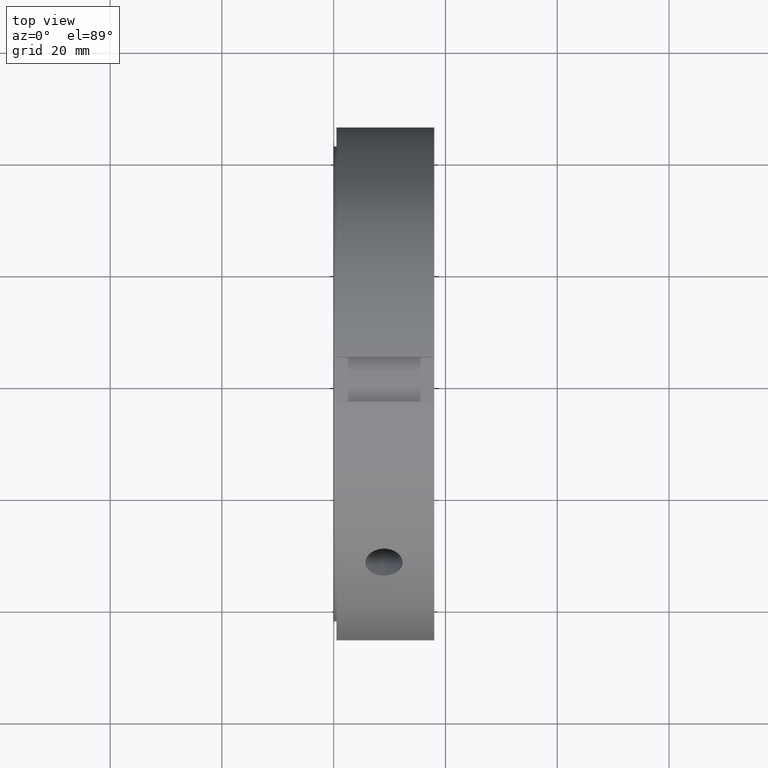
[diagram: clean part render]
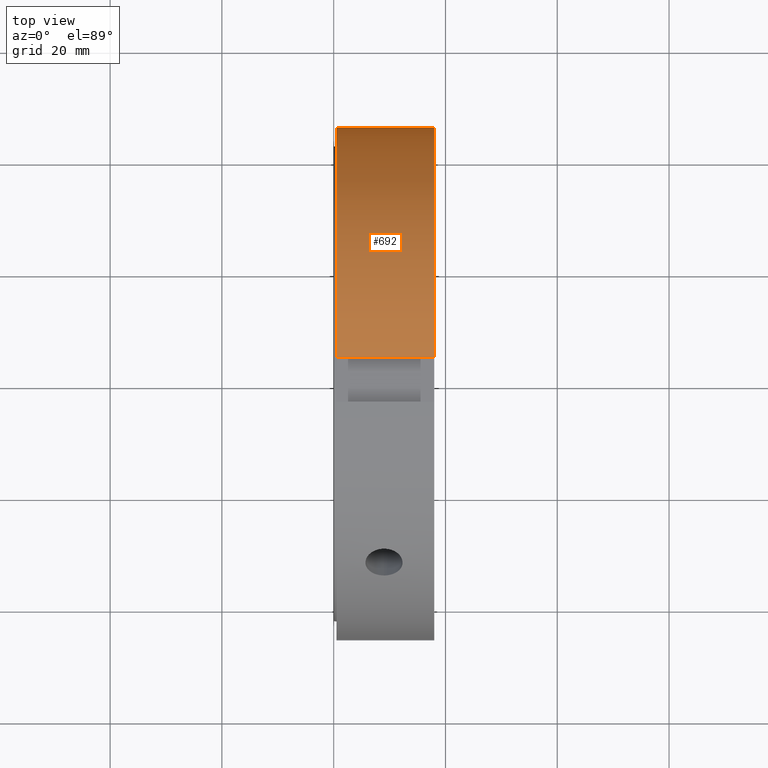
[diagram: same view with one face highlighted and labeled with its STEP entity id]
A machine part, top view. The second image highlights one B-rep face of the part: STEP entity #692.
In plain terms, the highlighted cylindrical surface (partial cylindrical patch) has radius 46 mm, axis along (1, 0, 0).
Its self-contained STEP definition (entity closure, byte-faithful):
#471=CARTESIAN_POINT('',(0.499999999999989,4.000000000000001,45.825756949558411));
#472=VERTEX_POINT('',#471);
#487=CARTESIAN_POINT('',(17.999999999999993,4.000000000000001,45.825756949558397));
#488=VERTEX_POINT('',#487);
#495=CARTESIAN_POINT('',(0.499999999999989,4.000000000000001,45.825756949558397));
#496=DIRECTION('',(1.0,0.0,0.0));
#497=VECTOR('',#496,17.500000000000004);
#498=LINE('',#495,#497);
#499=EDGE_CURVE('',#472,#488,#498,.T.);
#581=CARTESIAN_POINT('',(0.499999999999989,45.825756949558411,3.999999999999998));
#582=VERTEX_POINT('',#581);
#583=CARTESIAN_POINT('',(0.499999999999989,0.0,0.0));
#584=DIRECTION('',(1.0,0.0,0.0));
#585=DIRECTION('',(0.0,1.0,0.0));
#586=AXIS2_PLACEMENT_3D('',#583,#584,#585);
#587=CIRCLE('',#586,46.000000000000007);
#588=EDGE_CURVE('',#582,#472,#587,.T.);
#668=CARTESIAN_POINT('',(9.249999999999989,0.0,0.0));
#669=DIRECTION('',(1.0,0.0,0.0));
#670=DIRECTION('',(0.0,1.0,0.0));
#671=AXIS2_PLACEMENT_3D('',#668,#669,#670);
#672=CYLINDRICAL_SURFACE('',#671,46.0);
#673=ORIENTED_EDGE('',*,*,#499,.T.);
#674=CARTESIAN_POINT('',(17.999999999999993,45.825756949558397,3.999999999999998));
#675=VERTEX_POINT('',#674);
#676=CARTESIAN_POINT('',(17.999999999999989,0.0,0.0));
#677=DIRECTION('',(1.0,0.0,0.0));
#678=DIRECTION('',(0.0,1.0,0.0));
#679=AXIS2_PLACEMENT_3D('',#676,#677,#678);
#680=CIRCLE('',#679,46.0);
#681=EDGE_CURVE('',#675,#488,#680,.T.);
#682=ORIENTED_EDGE('',*,*,#681,.F.);
#683=CARTESIAN_POINT('',(17.999999999999993,45.825756949558397,3.999999999999998));
#684=DIRECTION('',(-1.0,0.0,0.0));
#685=VECTOR('',#684,17.500000000000004);
#686=LINE('',#683,#685);
#687=EDGE_CURVE('',#675,#582,#686,.T.);
#688=ORIENTED_EDGE('',*,*,#687,.T.);
#689=ORIENTED_EDGE('',*,*,#588,.T.);
#690=EDGE_LOOP('',(#673,#682,#688,#689));
#691=FACE_OUTER_BOUND('',#690,.T.);
#692=ADVANCED_FACE('',(#691),#672,.T.);